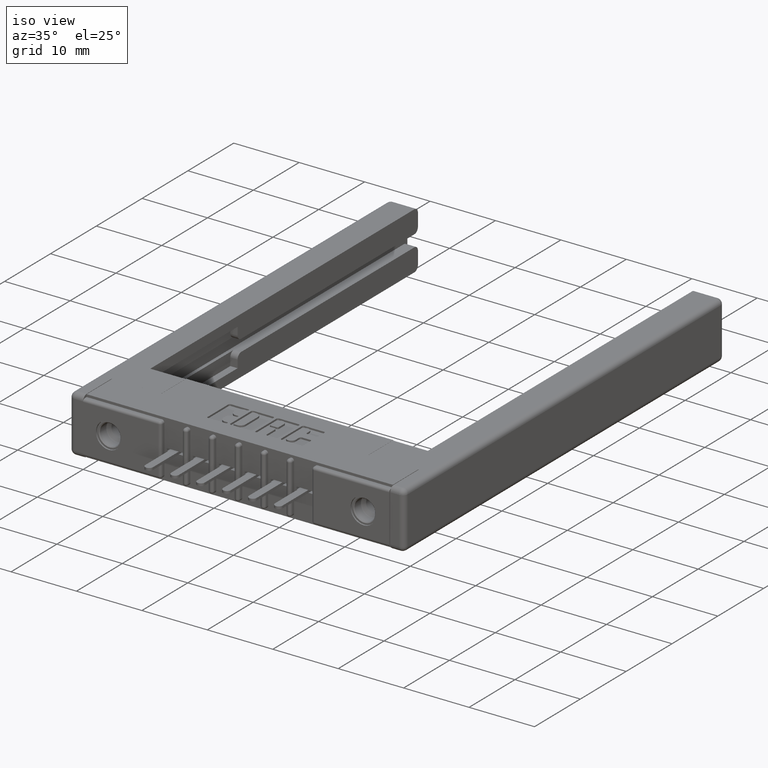
[diagram: clean part render]
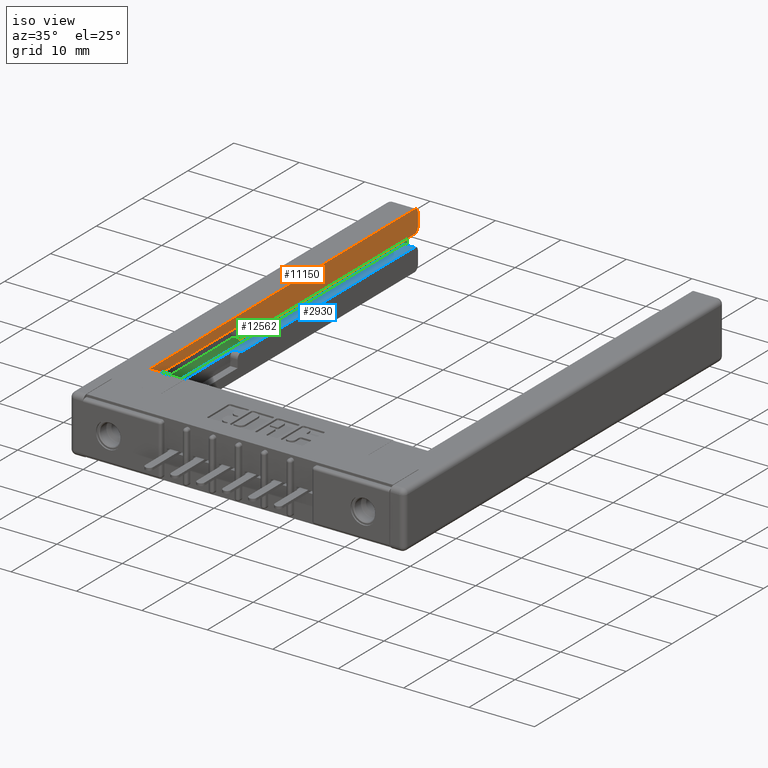
[diagram: same view with three faces highlighted in distinct colors, each labeled with its STEP entity id]
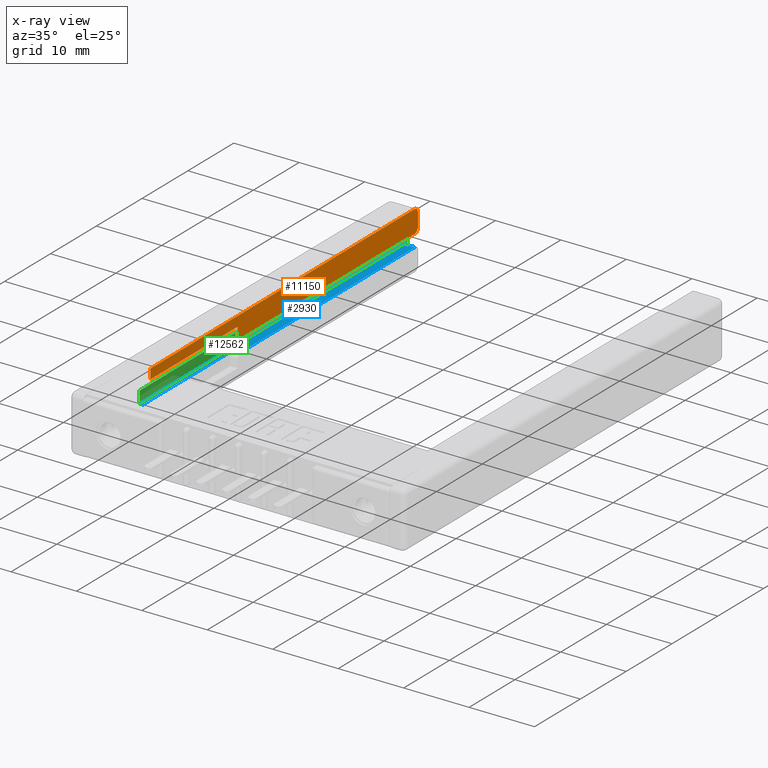
[diagram: x-ray of the same camera — body ghosted, the three highlighted faces saturated]
A machine part, iso view with three faces highlighted in distinct colors.
The next image is the same camera in x-ray (body ghosted, the three faces saturated) — at least one of them is partly hidden behind the body in this view.
Their STEP definitions:

[orange] entity #11150 — the highlighted planar face has unit normal (1, 0, 0).
#531 = CARTESIAN_POINT ( 'NONE',  ( 0.1730000000000000400, 2.750000000000000000, 0.0000000000000000000 ) ) ;
#584 = CARTESIAN_POINT ( 'NONE',  ( 0.1730000000000000400, 2.750000000000000000, -0.3430000000000000300 ) ) ;
#607 = AXIS2_PLACEMENT_3D ( 'NONE', #3342, #8462, #5781 ) ;
#620 = AXIS2_PLACEMENT_3D ( 'NONE', #6739, #6849, #5626 ) ;
#649 = AXIS2_PLACEMENT_3D ( 'NONE', #11433, #9362, #9268 ) ;
#1544 = CARTESIAN_POINT ( 'NONE',  ( 0.1729999999999998800, 1.200000000000000000, -0.05899999999999993400 ) ) ;
#1797 = EDGE_LOOP ( 'NONE', ( #10354, #10383, #10400, #10483, #10541, #10579, #10595, #10645, #10653 ) ) ;
#1853 = VERTEX_POINT ( 'NONE', #12719 ) ;
#1916 = VECTOR ( 'NONE', #6419, 39.37007874015748100 ) ;
#1999 = CARTESIAN_POINT ( 'NONE',  ( 0.1729999999999998800, 1.229999999999999800, -0.1360000000000001200 ) ) ;
#2034 = DIRECTION ( 'NONE',  ( 0.0000000000000000000, 0.0000000000000000000, 1.000000000000000000 ) ) ;
#2114 = LINE ( 'NONE', #584, #9552 ) ;
#2584 = CARTESIAN_POINT ( 'NONE',  ( 0.1730000000000000400, 2.750000000000000000, -0.3430000000000000300 ) ) ;
#2610 = VERTEX_POINT ( 'NONE', #3925 ) ;
#3342 = CARTESIAN_POINT ( 'NONE',  ( 0.1730000000000000400, 2.719999999999999800, -0.02999999999999999900 ) ) ;
#3732 = CARTESIAN_POINT ( 'NONE',  ( 0.1729999999999998800, 1.200000000000000000, -0.1060000000000001100 ) ) ;
#3925 = CARTESIAN_POINT ( 'NONE',  ( 0.1729999999999999600, 0.4499999999999999600, -0.05899999999999993400 ) ) ;
#4033 = VERTEX_POINT ( 'NONE', #3732 ) ;
#4293 = EDGE_CURVE ( 'NONE', #2610, #6940, #9563, .T. ) ;
#4392 = VERTEX_POINT ( 'NONE', #1999 ) ;
#4602 = EDGE_CURVE ( 'NONE', #5144, #5815, #2114, .T. ) ;
#4648 = EDGE_CURVE ( 'NONE', #4033, #8557, #6167, .T. ) ;
#4665 = EDGE_CURVE ( 'NONE', #4033, #4392, #8390, .T. ) ;
#4669 = EDGE_CURVE ( 'NONE', #9593, #4392, #12929, .T. ) ;
#4688 = EDGE_CURVE ( 'NONE', #9593, #5144, #10363, .T. ) ;
#4689 = EDGE_CURVE ( 'NONE', #5815, #1853, #12489, .T. ) ;
#4693 = EDGE_CURVE ( 'NONE', #6940, #1853, #10699, .T. ) ;
#4710 = EDGE_CURVE ( 'NONE', #8557, #2610, #5257, .T. ) ;
#4855 = DIRECTION ( 'NONE',  ( -0.0000000000000000000, 0.0000000000000000000, -1.000000000000000000 ) ) ;
#4891 = FACE_OUTER_BOUND ( 'NONE', #1797, .T. ) ;
#4978 = AXIS2_PLACEMENT_3D ( 'NONE', #2584, #10652, #4855 ) ;
#5144 = VERTEX_POINT ( 'NONE', #10819 ) ;
#5257 = LINE ( 'NONE', #7844, #1916 ) ;
#5626 = DIRECTION ( 'NONE',  ( 0.0000000000000000000, 0.0000000000000000000, -1.000000000000000000 ) ) ;
#5781 = DIRECTION ( 'NONE',  ( 0.0000000000000000000, 0.0000000000000000000, -1.000000000000000000 ) ) ;
#5815 = VERTEX_POINT ( 'NONE', #10183 ) ;
#5862 = VECTOR ( 'NONE', #11546, 39.37007874015748100 ) ;
#6167 = LINE ( 'NONE', #1544, #5862 ) ;
#6232 = CARTESIAN_POINT ( 'NONE',  ( 0.1730000000000000400, 0.4499999999999999600, 0.0000000000000000000 ) ) ;
#6419 = DIRECTION ( 'NONE',  ( 1.365923996832131600E-016, -1.000000000000000000, -0.0000000000000000000 ) ) ;
#6739 = CARTESIAN_POINT ( 'NONE',  ( 0.1730000000000000400, 2.719999999999999800, -0.1060000000000001600 ) ) ;
#6750 = VECTOR ( 'NONE', #2034, 39.37007874015748100 ) ;
#6849 = DIRECTION ( 'NONE',  ( 1.000000000000000000, 0.0000000000000000000, -0.0000000000000000000 ) ) ;
#6940 = VERTEX_POINT ( 'NONE', #6232 ) ;
#7484 = VECTOR ( 'NONE', #7985, 39.37007874015748100 ) ;
#7844 = CARTESIAN_POINT ( 'NONE',  ( 0.1729999999999999600, 0.4499999999999999600, -0.05899999999999993400 ) ) ;
#7985 = DIRECTION ( 'NONE',  ( -0.0000000000000000000, 1.000000000000000000, -0.0000000000000000000 ) ) ;
#8088 = VECTOR ( 'NONE', #12988, 39.37007874015748100 ) ;
#8390 = CIRCLE ( 'NONE', #649, 0.03000000000000000600 ) ;
#8462 = DIRECTION ( 'NONE',  ( 1.000000000000000000, 0.0000000000000000000, -0.0000000000000000000 ) ) ;
#8557 = VERTEX_POINT ( 'NONE', #8690 ) ;
#8669 = PLANE ( 'NONE',  #4978 ) ;
#8690 = CARTESIAN_POINT ( 'NONE',  ( 0.1729999999999998800, 1.200000000000000000, -0.05899999999999993400 ) ) ;
#9268 = DIRECTION ( 'NONE',  ( 0.0000000000000000000, 0.0000000000000000000, -1.000000000000000000 ) ) ;
#9362 = DIRECTION ( 'NONE',  ( 1.000000000000000000, 0.0000000000000000000, -0.0000000000000000000 ) ) ;
#9552 = VECTOR ( 'NONE', #12535, 39.37007874015748100 ) ;
#9563 = LINE ( 'NONE', #9777, #6750 ) ;
#9593 = VERTEX_POINT ( 'NONE', #11271 ) ;
#9777 = CARTESIAN_POINT ( 'NONE',  ( 0.1730000000000000400, 0.4499999999999999600, -0.3430000000000000300 ) ) ;
#10183 = CARTESIAN_POINT ( 'NONE',  ( 0.1730000000000000400, 2.750000000000000000, -0.03000000000000002300 ) ) ;
#10354 = ORIENTED_EDGE ( 'NONE', *, *, #4648, .F. ) ;
#10363 = CIRCLE ( 'NONE', #620, 0.03000000000000000600 ) ;
#10383 = ORIENTED_EDGE ( 'NONE', *, *, #4665, .T. ) ;
#10400 = ORIENTED_EDGE ( 'NONE', *, *, #4669, .F. ) ;
#10483 = ORIENTED_EDGE ( 'NONE', *, *, #4688, .T. ) ;
#10541 = ORIENTED_EDGE ( 'NONE', *, *, #4602, .T. ) ;
#10579 = ORIENTED_EDGE ( 'NONE', *, *, #4689, .T. ) ;
#10595 = ORIENTED_EDGE ( 'NONE', *, *, #4693, .F. ) ;
#10645 = ORIENTED_EDGE ( 'NONE', *, *, #4293, .F. ) ;
#10652 = DIRECTION ( 'NONE',  ( 1.000000000000000000, 0.0000000000000000000, -0.0000000000000000000 ) ) ;
#10653 = ORIENTED_EDGE ( 'NONE', *, *, #4710, .F. ) ;
#10699 = LINE ( 'NONE', #531, #7484 ) ;
#10819 = CARTESIAN_POINT ( 'NONE',  ( 0.1730000000000000400, 2.750000000000000000, -0.1060000000000001800 ) ) ;
#11150 = ADVANCED_FACE ( 'NONE', ( #4891 ), #8669, .T. ) ;
#11271 = CARTESIAN_POINT ( 'NONE',  ( 0.1729999999999997100, 2.719999999999999300, -0.1360000000000001800 ) ) ;
#11433 = CARTESIAN_POINT ( 'NONE',  ( 0.1730000000000000400, 1.230000000000000000, -0.1060000000000001100 ) ) ;
#11546 = DIRECTION ( 'NONE',  ( -0.0000000000000000000, -0.0000000000000000000, 1.000000000000000000 ) ) ;
#11590 = CARTESIAN_POINT ( 'NONE',  ( 0.1729999999999999600, 0.4500000000000001200, -0.1360000000000000900 ) ) ;
#12489 = CIRCLE ( 'NONE', #607, 0.02999999999999999900 ) ;
#12535 = DIRECTION ( 'NONE',  ( 0.0000000000000000000, 0.0000000000000000000, 1.000000000000000000 ) ) ;
#12719 = CARTESIAN_POINT ( 'NONE',  ( 0.1730000000000000400, 2.719999999999999800, 0.0000000000000000000 ) ) ;
#12929 = LINE ( 'NONE', #11590, #8088 ) ;
#12988 = DIRECTION ( 'NONE',  ( 1.187759997245332100E-016, -1.000000000000000000, 3.711749991391662600E-017 ) ) ;

[blue] entity #2930 — the highlighted planar face has unit normal (0, -0, -1).
#2 = ORIENTED_EDGE ( 'NONE', *, *, #4856, .F. ) ;
#6 = DIRECTION ( 'NONE',  ( 5.767358662871231000E-033, -4.454099989669995000E-017, -1.000000000000000000 ) ) ;
#56 = ORIENTED_EDGE ( 'NONE', *, *, #4253, .T. ) ;
#322 = VERTEX_POINT ( 'NONE', #4505 ) ;
#445 = PLANE ( 'NONE',  #1783 ) ;
#787 = CARTESIAN_POINT ( 'NONE',  ( 0.1089999999999996900, 2.719999999999999800, -0.2070000000000001800 ) ) ;
#908 = VERTEX_POINT ( 'NONE', #10963 ) ;
#1121 = DIRECTION ( 'NONE',  ( 0.0000000000000000000, 1.000000000000000000, -4.454099989669995000E-017 ) ) ;
#1783 = AXIS2_PLACEMENT_3D ( 'NONE', #11379, #6, #1121 ) ;
#2096 = VECTOR ( 'NONE', #2265, 39.37007874015748100 ) ;
#2110 = DIRECTION ( 'NONE',  ( -1.187759997245332100E-016, 1.000000000000000000, -4.454099989669995600E-017 ) ) ;
#2115 = VERTEX_POINT ( 'NONE', #4715 ) ;
#2265 = DIRECTION ( 'NONE',  ( 1.000000000000000000, 1.294842656484354100E-016, 0.0000000000000000000 ) ) ;
#2332 = FACE_OUTER_BOUND ( 'NONE', #5272, .T. ) ;
#2461 = LINE ( 'NONE', #5522, #10864 ) ;
#2930 = ADVANCED_FACE ( 'NONE', ( #2332 ), #445, .F. ) ;
#3235 = DIRECTION ( 'NONE',  ( 1.000000000000000000, 1.294842656484354100E-016, -0.0000000000000000000 ) ) ;
#3251 = VECTOR ( 'NONE', #3235, 39.37007874015748100 ) ;
#3952 = CARTESIAN_POINT ( 'NONE',  ( 0.1289999999999998600, 1.230000000000000000, -0.2070000000000001000 ) ) ;
#4253 = EDGE_CURVE ( 'NONE', #322, #11648, #7653, .T. ) ;
#4406 = EDGE_CURVE ( 'NONE', #2115, #12596, #10051, .T. ) ;
#4505 = CARTESIAN_POINT ( 'NONE',  ( 0.1089999999999999700, 0.4500000000000001200, -0.2070000000000000700 ) ) ;
#4715 = CARTESIAN_POINT ( 'NONE',  ( 0.1729999999999998800, 1.229999999999999800, -0.2070000000000001000 ) ) ;
#4836 = EDGE_CURVE ( 'NONE', #11648, #6517, #2461, .T. ) ;
#4850 = EDGE_CURVE ( 'NONE', #6517, #2115, #5091, .T. ) ;
#4854 = EDGE_CURVE ( 'NONE', #12596, #908, #7927, .T. ) ;
#4856 = EDGE_CURVE ( 'NONE', #322, #908, #12371, .T. ) ;
#4957 = VECTOR ( 'NONE', #12951, 39.37007874015748100 ) ;
#4969 = CARTESIAN_POINT ( 'NONE',  ( 0.1729999999999999600, 0.4500000000000001200, -0.2070000000000000700 ) ) ;
#5091 = LINE ( 'NONE', #8449, #2096 ) ;
#5272 = EDGE_LOOP ( 'NONE', ( #12603, #12647, #12784, #12826, #2, #56 ) ) ;
#5522 = CARTESIAN_POINT ( 'NONE',  ( 0.1289999999999999800, 0.4500000000000001200, -0.2070000000000000700 ) ) ;
#6517 = VERTEX_POINT ( 'NONE', #3952 ) ;
#7335 = VECTOR ( 'NONE', #2110, 39.37007874015748100 ) ;
#7516 = CARTESIAN_POINT ( 'NONE',  ( 0.1289999999999999800, 0.4499999999999999600, -0.2070000000000000700 ) ) ;
#7653 = LINE ( 'NONE', #9589, #3251 ) ;
#7927 = LINE ( 'NONE', #787, #10521 ) ;
#8045 = DIRECTION ( 'NONE',  ( -1.365923996832131600E-016, 1.000000000000000000, -4.454099989669995000E-017 ) ) ;
#8449 = CARTESIAN_POINT ( 'NONE',  ( 0.1089999999999998600, 1.230000000000000000, -0.2070000000000001000 ) ) ;
#9589 = CARTESIAN_POINT ( 'NONE',  ( 0.1089999999999999700, 0.4500000000000001200, -0.2070000000000000700 ) ) ;
#10051 = LINE ( 'NONE', #4969, #4957 ) ;
#10237 = CARTESIAN_POINT ( 'NONE',  ( 0.1089999999999999700, 0.4500000000000001200, -0.2070000000000000700 ) ) ;
#10304 = CARTESIAN_POINT ( 'NONE',  ( 0.1729999999999997100, 2.719999999999999300, -0.2070000000000001800 ) ) ;
#10502 = DIRECTION ( 'NONE',  ( -1.000000000000000000, -0.0000000000000000000, -5.767358662871231000E-033 ) ) ;
#10521 = VECTOR ( 'NONE', #10502, 39.37007874015748100 ) ;
#10864 = VECTOR ( 'NONE', #8045, 39.37007874015748100 ) ;
#10963 = CARTESIAN_POINT ( 'NONE',  ( 0.1089999999999996900, 2.719999999999999300, -0.2070000000000001800 ) ) ;
#11379 = CARTESIAN_POINT ( 'NONE',  ( 0.1089999999999999700, 0.4500000000000001200, -0.2070000000000000700 ) ) ;
#11648 = VERTEX_POINT ( 'NONE', #7516 ) ;
#12371 = LINE ( 'NONE', #10237, #7335 ) ;
#12596 = VERTEX_POINT ( 'NONE', #10304 ) ;
#12603 = ORIENTED_EDGE ( 'NONE', *, *, #4836, .T. ) ;
#12647 = ORIENTED_EDGE ( 'NONE', *, *, #4850, .T. ) ;
#12784 = ORIENTED_EDGE ( 'NONE', *, *, #4406, .T. ) ;
#12826 = ORIENTED_EDGE ( 'NONE', *, *, #4854, .T. ) ;
#12951 = DIRECTION ( 'NONE',  ( -1.187759997245332100E-016, 1.000000000000000000, -4.454099989669995600E-017 ) ) ;

[green] entity #12562 — the highlighted planar face has unit normal (-1, -0, 0).
#322 = VERTEX_POINT ( 'NONE', #4505 ) ;
#508 = AXIS2_PLACEMENT_3D ( 'NONE', #5213, #6174, #5886 ) ;
#529 = AXIS2_PLACEMENT_3D ( 'NONE', #3050, #11812, #12555 ) ;
#908 = VERTEX_POINT ( 'NONE', #10963 ) ;
#998 = DIRECTION ( 'NONE',  ( -1.000000000000000000, -1.187759997245332100E-016, 0.0000000000000000000 ) ) ;
#1560 = CARTESIAN_POINT ( 'NONE',  ( 0.1089999999999996900, 2.750000000000000000, -0.1060000000000001600 ) ) ;
#1889 = VERTEX_POINT ( 'NONE', #11185 ) ;
#2043 = ORIENTED_EDGE ( 'NONE', *, *, #4856, .T. ) ;
#2110 = DIRECTION ( 'NONE',  ( -1.187759997245332100E-016, 1.000000000000000000, -4.454099989669995600E-017 ) ) ;
#2147 = ORIENTED_EDGE ( 'NONE', *, *, #4906, .T. ) ;
#2256 = ORIENTED_EDGE ( 'NONE', *, *, #4608, .T. ) ;
#2446 = ORIENTED_EDGE ( 'NONE', *, *, #4908, .T. ) ;
#2478 = VERTEX_POINT ( 'NONE', #1560 ) ;
#2489 = LINE ( 'NONE', #10848, #12389 ) ;
#2575 = FACE_OUTER_BOUND ( 'NONE', #10191, .T. ) ;
#2667 = ORIENTED_EDGE ( 'NONE', *, *, #4873, .T. ) ;
#2998 = ORIENTED_EDGE ( 'NONE', *, *, #4257, .T. ) ;
#3050 = CARTESIAN_POINT ( 'NONE',  ( 0.1089999999999996900, 2.719999999999999800, -0.1060000000000001600 ) ) ;
#3744 = CIRCLE ( 'NONE', #508, 0.02999999999999995400 ) ;
#3755 = DIRECTION ( 'NONE',  ( 1.187759997245332100E-016, -1.000000000000000000, 3.711749991391662600E-017 ) ) ;
#4257 = EDGE_CURVE ( 'NONE', #4343, #322, #2489, .T. ) ;
#4343 = VERTEX_POINT ( 'NONE', #10071 ) ;
#4442 = LINE ( 'NONE', #10204, #4772 ) ;
#4505 = CARTESIAN_POINT ( 'NONE',  ( 0.1089999999999999700, 0.4500000000000001200, -0.2070000000000000700 ) ) ;
#4608 = EDGE_CURVE ( 'NONE', #1889, #2478, #7040, .T. ) ;
#4772 = VECTOR ( 'NONE', #3755, 39.37007874015748100 ) ;
#4856 = EDGE_CURVE ( 'NONE', #322, #908, #12371, .T. ) ;
#4873 = EDGE_CURVE ( 'NONE', #10522, #4343, #4442, .T. ) ;
#4906 = EDGE_CURVE ( 'NONE', #908, #1889, #3744, .T. ) ;
#4908 = EDGE_CURVE ( 'NONE', #2478, #10522, #11857, .T. ) ;
#5213 = CARTESIAN_POINT ( 'NONE',  ( 0.1089999999999996900, 2.719999999999999800, -0.2370000000000001500 ) ) ;
#5886 = DIRECTION ( 'NONE',  ( 0.0000000000000000000, -1.000000000000000000, 0.0000000000000000000 ) ) ;
#6174 = DIRECTION ( 'NONE',  ( -1.000000000000000000, -1.187759997245332100E-016, -0.0000000000000000000 ) ) ;
#7040 = LINE ( 'NONE', #12505, #11870 ) ;
#7335 = VECTOR ( 'NONE', #2110, 39.37007874015748100 ) ;
#7352 = CARTESIAN_POINT ( 'NONE',  ( 0.1089999999999996900, 2.750000000000000000, -0.2070000000000001800 ) ) ;
#8358 = DIRECTION ( 'NONE',  ( 1.187759997245332100E-016, -1.000000000000000000, 0.0000000000000000000 ) ) ;
#9101 = CARTESIAN_POINT ( 'NONE',  ( 0.1089999999999996900, 2.719999999999999300, -0.1360000000000001800 ) ) ;
#10071 = CARTESIAN_POINT ( 'NONE',  ( 0.1089999999999999700, 0.4500000000000001200, -0.1360000000000000900 ) ) ;
#10191 = EDGE_LOOP ( 'NONE', ( #2043, #2147, #2256, #2446, #2667, #2998 ) ) ;
#10204 = CARTESIAN_POINT ( 'NONE',  ( 0.1089999999999999700, 0.4500000000000001200, -0.1360000000000000900 ) ) ;
#10237 = CARTESIAN_POINT ( 'NONE',  ( 0.1089999999999999700, 0.4500000000000001200, -0.2070000000000000700 ) ) ;
#10522 = VERTEX_POINT ( 'NONE', #9101 ) ;
#10848 = CARTESIAN_POINT ( 'NONE',  ( 0.1089999999999999700, 0.4500000000000001200, -0.1360000000000000900 ) ) ;
#10963 = CARTESIAN_POINT ( 'NONE',  ( 0.1089999999999996900, 2.719999999999999300, -0.2070000000000001800 ) ) ;
#11185 = CARTESIAN_POINT ( 'NONE',  ( 0.1089999999999996900, 2.750000000000000000, -0.2370000000000001500 ) ) ;
#11812 = DIRECTION ( 'NONE',  ( -1.000000000000000000, -1.187759997245332100E-016, -0.0000000000000000000 ) ) ;
#11857 = CIRCLE ( 'NONE', #529, 0.02999999999999995400 ) ;
#11870 = VECTOR ( 'NONE', #12883, 39.37007874015748100 ) ;
#12320 = AXIS2_PLACEMENT_3D ( 'NONE', #7352, #998, #8358 ) ;
#12371 = LINE ( 'NONE', #10237, #7335 ) ;
#12389 = VECTOR ( 'NONE', #12891, 39.37007874015748100 ) ;
#12505 = CARTESIAN_POINT ( 'NONE',  ( 0.1089999999999996900, 2.750000000000000000, -0.1360000000000001800 ) ) ;
#12555 = DIRECTION ( 'NONE',  ( 0.0000000000000000000, -1.000000000000000000, 0.0000000000000000000 ) ) ;
#12562 = ADVANCED_FACE ( 'NONE', ( #2575 ), #12895, .F. ) ;
#12883 = DIRECTION ( 'NONE',  ( -0.0000000000000000000, -0.0000000000000000000, 1.000000000000000000 ) ) ;
#12891 = DIRECTION ( 'NONE',  ( 0.0000000000000000000, 0.0000000000000000000, -1.000000000000000000 ) ) ;
#12895 = PLANE ( 'NONE',  #12320 ) ;